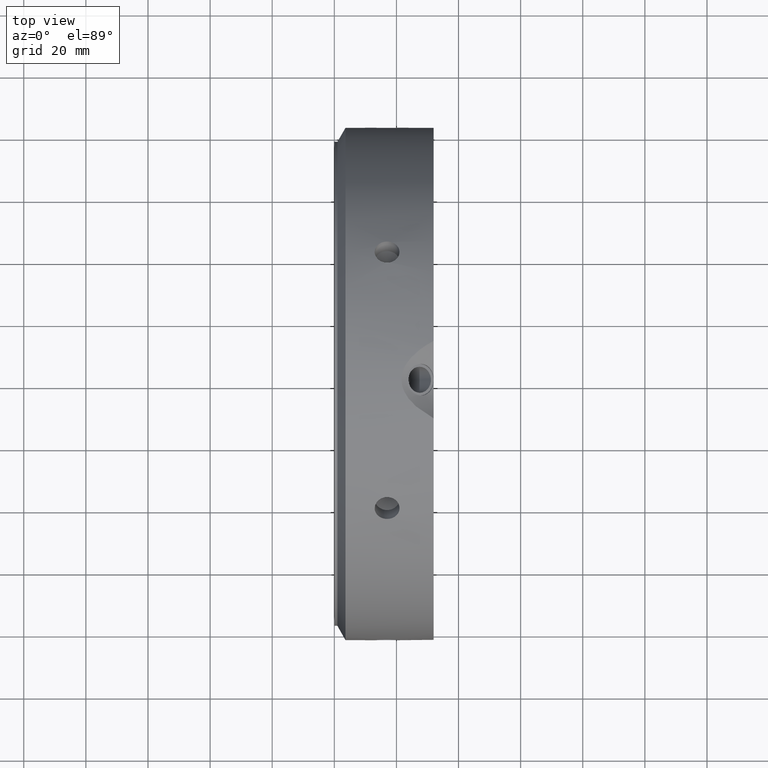
[diagram: clean part render]
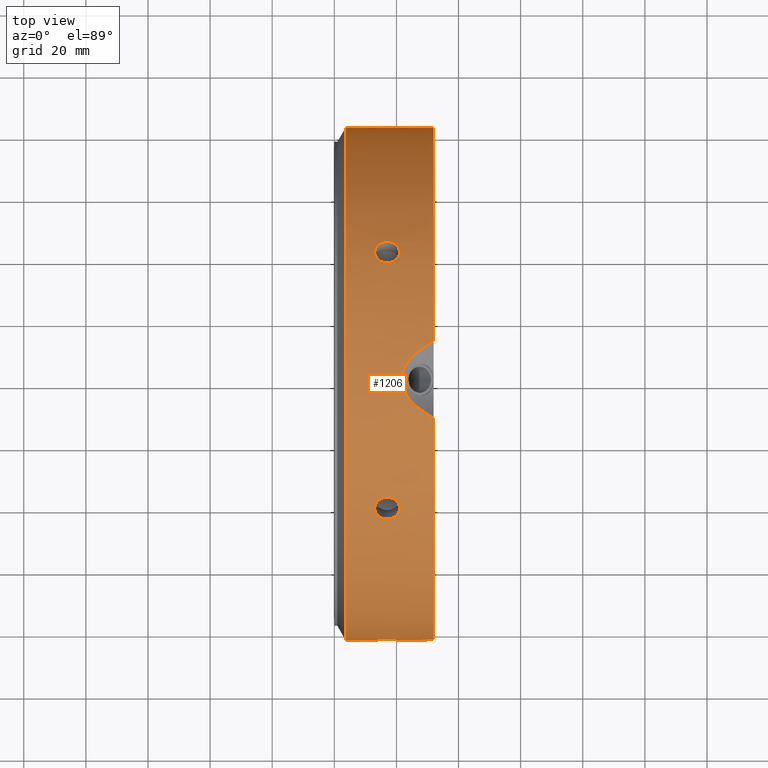
[diagram: same view with one face highlighted and labeled with its STEP entity id]
A machine part, top view. The second image highlights one B-rep face of the part: STEP entity #1206.
In plain terms, the highlighted cylindrical surface (bore or boss wall) has radius 82.5 mm, axis along (1, 0, 0).
Its self-contained STEP definition (entity closure, byte-faithful):
#90=CARTESIAN_POINT('',(12.999999999999975,41.250000000000057,71.447095812216148));
#91=VERTEX_POINT('',#90);
#92=CARTESIAN_POINT('',(20.999999999999979,41.250000000000064,71.447095812216148));
#93=VERTEX_POINT('',#92);
#94=CARTESIAN_POINT('',(12.999999999999975,41.250000000000057,71.447095812216148));
#95=CARTESIAN_POINT('',(12.999999999999975,41.685033442461872,71.195929137104329));
#96=CARTESIAN_POINT('',(13.100407551190838,42.146487817611636,70.92366634585909));
#97=CARTESIAN_POINT('',(13.508646735012434,42.990805944185865,70.415079972754441));
#98=CARTESIAN_POINT('',(13.816474009260165,43.373806231056236,70.178979592331657));
#99=CARTESIAN_POINT('',(14.526671807563524,43.976674206785511,69.802781959944241));
#100=CARTESIAN_POINT('',(14.976409945488685,44.236772683098437,69.6376312860274));
#101=CARTESIAN_POINT('',(15.961903983267661,44.581165710278498,69.41765922659674));
#102=CARTESIAN_POINT('',(16.497666555963583,44.665588238802258,69.363068179556265));
#103=CARTESIAN_POINT('',(17.50233344403637,44.665588238802258,69.363068179556265));
#104=CARTESIAN_POINT('',(18.0380960167323,44.581165710278498,69.417659226596726));
#105=CARTESIAN_POINT('',(19.023590054511274,44.236772683098437,69.6376312860274));
#106=CARTESIAN_POINT('',(19.47332819243643,43.976674206785511,69.802781959944241));
#107=CARTESIAN_POINT('',(20.183525990739788,43.373806231056236,70.178979592331672));
#108=CARTESIAN_POINT('',(20.491353264987531,42.990805944185873,70.415079972754455));
#109=CARTESIAN_POINT('',(20.89959244880912,42.146487817611636,70.923666345859104));
#110=CARTESIAN_POINT('',(20.999999999999979,41.685033442461872,71.195929137104329));
#111=CARTESIAN_POINT('',(20.999999999999979,41.250000000000057,71.447095812216148));
#112=B_SPLINE_CURVE_WITH_KNOTS('',3,(#94,#95,#96,#97,#98,#99,#100,#101,#102,#103,#104,#105,#106,#107,#108,#109,#110,#111),.UNSPECIFIED.,.F.,.U.,(4,2,2,2,2,2,2,2,4),(0.602800076556027,0.753500081623122,0.904200086690217,1.054900119901135,1.205600153112053,1.356300186322971,1.507000219533889,1.657700224600984,1.808400229668079),.UNSPECIFIED.);
#113=EDGE_CURVE('',#91,#93,#112,.T.);
#115=CARTESIAN_POINT('',(20.999999999999979,41.250000000000064,71.447095812216148));
#116=CARTESIAN_POINT('',(20.999999999999979,40.814966557538249,71.698262487327966));
#117=CARTESIAN_POINT('',(20.899592448809109,40.348452876239733,71.961762303272536));
#118=CARTESIAN_POINT('',(20.491353264987517,39.485845093825411,72.438670063209173));
#119=CARTESIAN_POINT('',(20.183525990739788,39.089876023100921,72.652307851084231));
#120=CARTESIAN_POINT('',(19.473328192436426,38.462645328745218,72.986308017000169));
#121=CARTESIAN_POINT('',(19.023590054511267,38.189571411524653,73.128984568014374));
#122=CARTESIAN_POINT('',(18.038096016732293,37.826873506344889,73.317251648723214));
#123=CARTESIAN_POINT('',(17.50233344403637,37.737385008526758,73.363068179556279));
#124=CARTESIAN_POINT('',(16.999999999999979,37.737385008526758,73.363068179556279));
#125=CARTESIAN_POINT('',(16.497666555963583,37.737385008526758,73.363068179556279));
#126=CARTESIAN_POINT('',(15.961903983267653,37.826873506344889,73.3172516487232));
#127=CARTESIAN_POINT('',(14.976409945488678,38.189571411524653,73.128984568014374));
#128=CARTESIAN_POINT('',(14.526671807563527,38.462645328745218,72.986308017000169));
#129=CARTESIAN_POINT('',(13.816474009260165,39.089876023100921,72.652307851084231));
#130=CARTESIAN_POINT('',(13.508646735012436,39.485845093825404,72.438670063209173));
#131=CARTESIAN_POINT('',(13.100407551190841,40.348452876239726,71.961762303272522));
#132=CARTESIAN_POINT('',(12.999999999999979,40.814966557538234,71.698262487327966));
#133=CARTESIAN_POINT('',(12.999999999999979,41.250000000000057,71.447095812216148));
#134=B_SPLINE_CURVE_WITH_KNOTS('',3,(#115,#116,#117,#118,#119,#120,#121,#122,#123,#124,#125,#126,#127,#128,#129,#130,#131,#132,#133),.UNSPECIFIED.,.F.,.U.,(4,2,2,2,3,2,2,2,4),(1.808400229668079,1.959100234735174,2.109800239802269,2.260500273013188,2.411200306224106,2.561900339435024,2.712600372645942,2.863300377713037,3.014000382780132),.UNSPECIFIED.);
#135=EDGE_CURVE('',#93,#91,#134,.T.);
#202=CARTESIAN_POINT('',(12.999999999999975,82.5,-5.495604E-014));
#203=VERTEX_POINT('',#202);
#204=CARTESIAN_POINT('',(20.999999999999979,82.5,-5.329071E-014));
#205=VERTEX_POINT('',#204);
#206=CARTESIAN_POINT('',(12.999999999999979,82.5,-5.037637E-014));
#207=CARTESIAN_POINT('',(12.999999999999979,82.5,-0.502333350223701));
#208=CARTESIAN_POINT('',(13.100407551190841,82.494940693851248,-1.038095957413485));
#209=CARTESIAN_POINT('',(13.508646735012436,82.476651038011141,-2.023590090454768));
#210=CARTESIAN_POINT('',(13.816474009260167,82.46368225415705,-2.47332825875262));
#211=CARTESIAN_POINT('',(14.526671807563529,82.439319535530586,-3.183526057055981));
#212=CARTESIAN_POINT('',(14.976409945488685,82.426344094622962,-3.491353281987027));
#213=CARTESIAN_POINT('',(15.961903983267661,82.408039216623251,-3.899592422126512));
#214=CARTESIAN_POINT('',(16.497666555963583,82.402973247328902,-4.000000000000052));
#215=CARTESIAN_POINT('',(17.502333444036374,82.402973247328902,-4.000000000000051));
#216=CARTESIAN_POINT('',(18.0380960167323,82.408039216623251,-3.89959242212651));
#217=CARTESIAN_POINT('',(19.023590054511274,82.426344094622962,-3.491353281987024));
#218=CARTESIAN_POINT('',(19.47332819243643,82.439319535530586,-3.183526057055981));
#219=CARTESIAN_POINT('',(20.183525990739788,82.46368225415705,-2.473328258752619));
#220=CARTESIAN_POINT('',(20.491353264987524,82.476651038011141,-2.023590090454766));
#221=CARTESIAN_POINT('',(20.899592448809116,82.494940693851248,-1.038095957413483));
#222=CARTESIAN_POINT('',(20.999999999999979,82.5,-0.502333350223701));
#223=CARTESIAN_POINT('',(20.999999999999979,82.5,-5.148659E-014));
#224=B_SPLINE_CURVE_WITH_KNOTS('',3,(#206,#207,#208,#209,#210,#211,#212,#213,#214,#215,#216,#217,#218,#219,#220,#221,#222,#223),.UNSPECIFIED.,.F.,.U.,(4,2,2,2,2,2,2,2,4),(0.602800076556026,0.753500081623121,0.904200086690216,1.054900119901135,1.205600153112053,1.356300186322971,1.507000219533889,1.657700224600984,1.808400229668079),.UNSPECIFIED.);
#225=EDGE_CURVE('',#203,#205,#224,.T.);
#227=CARTESIAN_POINT('',(20.999999999999979,82.5,-5.148659E-014));
#228=CARTESIAN_POINT('',(20.999999999999979,82.5,0.502333350223598));
#229=CARTESIAN_POINT('',(20.899592448809116,82.494940693851248,1.038095957413382));
#230=CARTESIAN_POINT('',(20.491353264987524,82.476651038011141,2.023590090454665));
#231=CARTESIAN_POINT('',(20.183525990739788,82.463682254157021,2.473328258752518));
#232=CARTESIAN_POINT('',(19.473328192436426,82.439319535530586,3.18352605705588));
#233=CARTESIAN_POINT('',(19.023590054511271,82.426344094622962,3.491353281986924));
#234=CARTESIAN_POINT('',(18.038096016732293,82.408039216623251,3.89959242212641));
#235=CARTESIAN_POINT('',(17.502333444036367,82.402973247328902,3.99999999999995));
#236=CARTESIAN_POINT('',(16.999999999999979,82.402973247328902,3.99999999999995));
#237=CARTESIAN_POINT('',(16.497666555963583,82.402973247328902,3.99999999999995));
#238=CARTESIAN_POINT('',(15.961903983267655,82.408039216623251,3.899592422126409));
#239=CARTESIAN_POINT('',(14.976409945488683,82.426344094622962,3.491353281986923));
#240=CARTESIAN_POINT('',(14.526671807563527,82.439319535530586,3.18352605705588));
#241=CARTESIAN_POINT('',(13.816474009260165,82.463682254157021,2.473328258752519));
#242=CARTESIAN_POINT('',(13.508646735012437,82.476651038011141,2.023590090454666));
#243=CARTESIAN_POINT('',(13.100407551190845,82.494940693851248,1.038095957413384));
#244=CARTESIAN_POINT('',(12.999999999999979,82.5,0.502333350223599));
#245=CARTESIAN_POINT('',(12.999999999999979,82.5,-5.079270E-014));
#246=B_SPLINE_CURVE_WITH_KNOTS('',3,(#227,#228,#229,#230,#231,#232,#233,#234,#235,#236,#237,#238,#239,#240,#241,#242,#243,#244,#245),.UNSPECIFIED.,.F.,.U.,(4,2,2,2,3,2,2,2,4),(1.808400229668079,1.959100234735174,2.109800239802269,2.260500273013188,2.411200306224106,2.561900339435024,2.712600372645942,2.863300377713037,3.014000382780132),.UNSPECIFIED.);
#247=EDGE_CURVE('',#205,#203,#246,.T.);
#314=CARTESIAN_POINT('',(12.999999999999975,41.249999999999986,-71.447095812216205));
#315=VERTEX_POINT('',#314);
#316=CARTESIAN_POINT('',(20.999999999999979,41.249999999999986,-71.447095812216205));
#317=VERTEX_POINT('',#316);
#318=CARTESIAN_POINT('',(12.999999999999979,41.249999999999972,-71.44709581221619));
#319=CARTESIAN_POINT('',(12.999999999999979,40.814966557538142,-71.698262487328023));
#320=CARTESIAN_POINT('',(13.100407551190843,40.348452876239648,-71.961762303272565));
#321=CARTESIAN_POINT('',(13.508646735012439,39.485845093825318,-72.438670063209216));
#322=CARTESIAN_POINT('',(13.816474009260167,39.089876023100842,-72.652307851084288));
#323=CARTESIAN_POINT('',(14.526671807563527,38.46264532874514,-72.986308017000212));
#324=CARTESIAN_POINT('',(14.97640994548868,38.189571411524568,-73.128984568014431));
#325=CARTESIAN_POINT('',(15.961903983267655,37.82687350634481,-73.317251648723257));
#326=CARTESIAN_POINT('',(16.497666555963583,37.737385008526672,-73.363068179556308));
#327=CARTESIAN_POINT('',(17.50233344403637,37.737385008526672,-73.363068179556308));
#328=CARTESIAN_POINT('',(18.038096016732304,37.82687350634481,-73.317251648723257));
#329=CARTESIAN_POINT('',(19.023590054511281,38.189571411524582,-73.128984568014431));
#330=CARTESIAN_POINT('',(19.473328192436426,38.46264532874514,-72.986308017000212));
#331=CARTESIAN_POINT('',(20.183525990739788,39.089876023100842,-72.652307851084288));
#332=CARTESIAN_POINT('',(20.491353264987524,39.485845093825326,-72.438670063209202));
#333=CARTESIAN_POINT('',(20.899592448809116,40.348452876239648,-71.961762303272565));
#334=CARTESIAN_POINT('',(20.999999999999979,40.814966557538156,-71.698262487328023));
#335=CARTESIAN_POINT('',(20.999999999999979,41.249999999999986,-71.447095812216205));
#336=B_SPLINE_CURVE_WITH_KNOTS('',3,(#318,#319,#320,#321,#322,#323,#324,#325,#326,#327,#328,#329,#330,#331,#332,#333,#334,#335),.UNSPECIFIED.,.F.,.U.,(4,2,2,2,2,2,2,2,4),(0.602800076556026,0.753500081623121,0.904200086690216,1.054900119901134,1.205600153112052,1.35630018632297,1.507000219533889,1.657700224600984,1.808400229668079),.UNSPECIFIED.);
#337=EDGE_CURVE('',#315,#317,#336,.T.);
#339=CARTESIAN_POINT('',(20.999999999999979,41.249999999999986,-71.44709581221619));
#340=CARTESIAN_POINT('',(20.999999999999979,41.685033442461815,-71.195929137104358));
#341=CARTESIAN_POINT('',(20.899592448809116,42.146487817611572,-70.923666345859147));
#342=CARTESIAN_POINT('',(20.491353264987524,42.990805944185794,-70.415079972754512));
#343=CARTESIAN_POINT('',(20.183525990739788,43.37380623105615,-70.1789795923317));
#344=CARTESIAN_POINT('',(19.473328192436426,43.976674206785418,-69.802781959944284));
#345=CARTESIAN_POINT('',(19.023590054511274,44.236772683098366,-69.637631286027457));
#346=CARTESIAN_POINT('',(18.0380960167323,44.581165710278427,-69.417659226596797));
#347=CARTESIAN_POINT('',(17.50233344403637,44.665588238802187,-69.363068179556308));
#348=CARTESIAN_POINT('',(16.999999999999979,44.665588238802187,-69.363068179556308));
#349=CARTESIAN_POINT('',(16.497666555963583,44.665588238802187,-69.363068179556308));
#350=CARTESIAN_POINT('',(15.961903983267655,44.581165710278427,-69.417659226596797));
#351=CARTESIAN_POINT('',(14.976409945488683,44.236772683098366,-69.637631286027457));
#352=CARTESIAN_POINT('',(14.526671807563527,43.976674206785418,-69.802781959944284));
#353=CARTESIAN_POINT('',(13.816474009260167,43.37380623105615,-70.1789795923317));
#354=CARTESIAN_POINT('',(13.50864673501243,42.990805944185794,-70.415079972754512));
#355=CARTESIAN_POINT('',(13.100407551190838,42.146487817611572,-70.923666345859147));
#356=CARTESIAN_POINT('',(12.999999999999975,41.685033442461815,-71.195929137104358));
#357=CARTESIAN_POINT('',(12.999999999999975,41.249999999999986,-71.44709581221619));
#358=B_SPLINE_CURVE_WITH_KNOTS('',3,(#339,#340,#341,#342,#343,#344,#345,#346,#347,#348,#349,#350,#351,#352,#353,#354,#355,#356,#357),.UNSPECIFIED.,.F.,.U.,(4,2,2,2,3,2,2,2,4),(1.808400229668079,1.959100234735173,2.109800239802268,2.260500273013186,2.411200306224104,2.561900339435022,2.71260037264594,2.863300377713035,3.01400038278013),.UNSPECIFIED.);
#359=EDGE_CURVE('',#317,#315,#358,.T.);
#426=CARTESIAN_POINT('',(12.999999999999975,-41.250000000000028,-71.447095812216176));
#427=VERTEX_POINT('',#426);
#428=CARTESIAN_POINT('',(20.999999999999979,-41.250000000000028,-71.447095812216176));
#429=VERTEX_POINT('',#428);
#430=CARTESIAN_POINT('',(12.999999999999975,-41.250000000000014,-71.447095812216176));
#431=CARTESIAN_POINT('',(12.999999999999975,-41.685033442461844,-71.195929137104343));
#432=CARTESIAN_POINT('',(13.100407551190841,-42.1464878176116,-70.923666345859118));
#433=CARTESIAN_POINT('',(13.508646735012436,-42.99080594418583,-70.415079972754469));
#434=CARTESIAN_POINT('',(13.816474009260165,-43.3738062310562,-70.178979592331686));
#435=CARTESIAN_POINT('',(14.526671807563527,-43.976674206785461,-69.802781959944269));
#436=CARTESIAN_POINT('',(14.976409945488687,-44.236772683098387,-69.637631286027428));
#437=CARTESIAN_POINT('',(15.961903983267657,-44.581165710278448,-69.417659226596768));
#438=CARTESIAN_POINT('',(16.497666555963583,-44.665588238802229,-69.363068179556279));
#439=CARTESIAN_POINT('',(17.50233344403637,-44.665588238802229,-69.363068179556279));
#440=CARTESIAN_POINT('',(18.0380960167323,-44.581165710278448,-69.417659226596768));
#441=CARTESIAN_POINT('',(19.023590054511271,-44.236772683098387,-69.637631286027428));
#442=CARTESIAN_POINT('',(19.473328192436426,-43.976674206785475,-69.802781959944269));
#443=CARTESIAN_POINT('',(20.183525990739788,-43.3738062310562,-70.178979592331686));
#444=CARTESIAN_POINT('',(20.491353264987513,-42.99080594418583,-70.415079972754469));
#445=CARTESIAN_POINT('',(20.899592448809109,-42.1464878176116,-70.923666345859118));
#446=CARTESIAN_POINT('',(20.999999999999979,-41.685033442461837,-71.195929137104358));
#447=CARTESIAN_POINT('',(20.999999999999979,-41.250000000000007,-71.447095812216176));
#448=B_SPLINE_CURVE_WITH_KNOTS('',3,(#430,#431,#432,#433,#434,#435,#436,#437,#438,#439,#440,#441,#442,#443,#444,#445,#446,#447),.UNSPECIFIED.,.F.,.U.,(4,2,2,2,2,2,2,2,4),(0.602800076556026,0.753500081623122,0.904200086690217,1.054900119901135,1.205600153112053,1.356300186322971,1.507000219533889,1.657700224600985,1.80840022966808),.UNSPECIFIED.);
#449=EDGE_CURVE('',#427,#429,#448,.T.);
#451=CARTESIAN_POINT('',(20.999999999999979,-41.250000000000007,-71.447095812216176));
#452=CARTESIAN_POINT('',(20.999999999999979,-40.814966557538177,-71.698262487328009));
#453=CARTESIAN_POINT('',(20.899592448809109,-40.348452876239691,-71.96176230327255));
#454=CARTESIAN_POINT('',(20.491353264987524,-39.485845093825375,-72.438670063209187));
#455=CARTESIAN_POINT('',(20.183525990739788,-39.089876023100885,-72.652307851084259));
#456=CARTESIAN_POINT('',(19.473328192436426,-38.462645328745182,-72.986308017000184));
#457=CARTESIAN_POINT('',(19.023590054511274,-38.189571411524611,-73.128984568014417));
#458=CARTESIAN_POINT('',(18.038096016732297,-37.826873506344839,-73.317251648723243));
#459=CARTESIAN_POINT('',(17.502333444036374,-37.737385008526715,-73.363068179556294));
#460=CARTESIAN_POINT('',(16.999999999999979,-37.737385008526715,-73.363068179556294));
#461=CARTESIAN_POINT('',(16.497666555963583,-37.737385008526715,-73.363068179556294));
#462=CARTESIAN_POINT('',(15.961903983267652,-37.826873506344846,-73.317251648723229));
#463=CARTESIAN_POINT('',(14.976409945488678,-38.189571411524611,-73.128984568014403));
#464=CARTESIAN_POINT('',(14.526671807563527,-38.462645328745175,-72.986308017000198));
#465=CARTESIAN_POINT('',(13.816474009260165,-39.089876023100878,-72.652307851084274));
#466=CARTESIAN_POINT('',(13.508646735012437,-39.485845093825361,-72.438670063209187));
#467=CARTESIAN_POINT('',(13.100407551190845,-40.348452876239676,-71.96176230327255));
#468=CARTESIAN_POINT('',(12.999999999999979,-40.814966557538185,-71.698262487328009));
#469=CARTESIAN_POINT('',(12.999999999999979,-41.250000000000014,-71.447095812216176));
#470=B_SPLINE_CURVE_WITH_KNOTS('',3,(#451,#452,#453,#454,#455,#456,#457,#458,#459,#460,#461,#462,#463,#464,#465,#466,#467,#468,#469),.UNSPECIFIED.,.F.,.U.,(4,2,2,2,3,2,2,2,4),(1.80840022966808,1.959100234735175,2.10980023980227,2.260500273013188,2.411200306224106,2.561900339435024,2.712600372645942,2.863300377713038,3.014000382780132),.UNSPECIFIED.);
#471=EDGE_CURVE('',#429,#427,#470,.T.);
#538=CARTESIAN_POINT('',(12.999999999999975,-82.5,2.289835E-014));
#539=VERTEX_POINT('',#538);
#540=CARTESIAN_POINT('',(20.999999999999979,-82.5,1.776357E-014));
#541=VERTEX_POINT('',#540);
#542=CARTESIAN_POINT('',(12.999999999999979,-82.5,1.804112E-014));
#543=CARTESIAN_POINT('',(12.999999999999979,-82.5,0.502333350223668));
#544=CARTESIAN_POINT('',(13.100407551190841,-82.494940693851248,1.038095957413453));
#545=CARTESIAN_POINT('',(13.508646735012434,-82.476651038011141,2.023590090454736));
#546=CARTESIAN_POINT('',(13.816474009260167,-82.46368225415705,2.473328258752586));
#547=CARTESIAN_POINT('',(14.526671807563527,-82.439319535530586,3.183526057055948));
#548=CARTESIAN_POINT('',(14.976409945488683,-82.426344094622962,3.491353281986992));
#549=CARTESIAN_POINT('',(15.961903983267655,-82.408039216623251,3.899592422126478));
#550=CARTESIAN_POINT('',(16.497666555963583,-82.402973247328902,4.000000000000019));
#551=CARTESIAN_POINT('',(17.50233344403637,-82.402973247328902,4.000000000000019));
#552=CARTESIAN_POINT('',(18.0380960167323,-82.408039216623251,3.899592422126478));
#553=CARTESIAN_POINT('',(19.023590054511274,-82.426344094622962,3.491353281986992));
#554=CARTESIAN_POINT('',(19.473328192436426,-82.439319535530586,3.183526057055948));
#555=CARTESIAN_POINT('',(20.183525990739788,-82.46368225415705,2.473328258752587));
#556=CARTESIAN_POINT('',(20.491353264987517,-82.476651038011141,2.023590090454737));
#557=CARTESIAN_POINT('',(20.899592448809109,-82.494940693851248,1.038095957413455));
#558=CARTESIAN_POINT('',(20.999999999999979,-82.5,0.50233335022367));
#559=CARTESIAN_POINT('',(20.999999999999979,-82.5,1.998401E-014));
#560=B_SPLINE_CURVE_WITH_KNOTS('',3,(#542,#543,#544,#545,#546,#547,#548,#549,#550,#551,#552,#553,#554,#555,#556,#557,#558,#559),.UNSPECIFIED.,.F.,.U.,(4,2,2,2,2,2,2,2,4),(0.602800076556026,0.753500081623121,0.904200086690216,1.054900119901134,1.205600153112052,1.35630018632297,1.507000219533889,1.657700224600983,1.808400229668078),.UNSPECIFIED.);
#561=EDGE_CURVE('',#539,#541,#560,.T.);
#563=CARTESIAN_POINT('',(20.999999999999979,-82.5,1.942890E-014));
#564=CARTESIAN_POINT('',(20.999999999999979,-82.5,-0.502333350223631));
#565=CARTESIAN_POINT('',(20.899592448809116,-82.494940693851248,-1.038095957413413));
#566=CARTESIAN_POINT('',(20.491353264987524,-82.476651038011141,-2.023590090454697));
#567=CARTESIAN_POINT('',(20.183525990739788,-82.46368225415705,-2.473328258752551));
#568=CARTESIAN_POINT('',(19.473328192436426,-82.439319535530586,-3.183526057055912));
#569=CARTESIAN_POINT('',(19.023590054511274,-82.426344094622962,-3.491353281986955));
#570=CARTESIAN_POINT('',(18.0380960167323,-82.408039216623251,-3.899592422126441));
#571=CARTESIAN_POINT('',(17.50233344403637,-82.402973247328902,-3.999999999999982));
#572=CARTESIAN_POINT('',(16.999999999999979,-82.402973247328902,-3.999999999999982));
#573=CARTESIAN_POINT('',(16.497666555963583,-82.402973247328902,-3.999999999999982));
#574=CARTESIAN_POINT('',(15.961903983267655,-82.408039216623251,-3.899592422126442));
#575=CARTESIAN_POINT('',(14.976409945488683,-82.426344094622962,-3.491353281986956));
#576=CARTESIAN_POINT('',(14.526671807563527,-82.439319535530586,-3.183526057055913));
#577=CARTESIAN_POINT('',(13.816474009260165,-82.46368225415705,-2.473328258752552));
#578=CARTESIAN_POINT('',(13.508646735012437,-82.476651038011141,-2.023590090454699));
#579=CARTESIAN_POINT('',(13.100407551190843,-82.494940693851248,-1.038095957413416));
#580=CARTESIAN_POINT('',(12.999999999999979,-82.5,-0.502333350223632));
#581=CARTESIAN_POINT('',(12.999999999999979,-82.5,1.845746E-014));
#582=B_SPLINE_CURVE_WITH_KNOTS('',3,(#563,#564,#565,#566,#567,#568,#569,#570,#571,#572,#573,#574,#575,#576,#577,#578,#579,#580,#581),.UNSPECIFIED.,.F.,.U.,(4,2,2,2,3,2,2,2,4),(1.808400229668078,1.959100234735173,2.109800239802269,2.260500273013187,2.411200306224105,2.561900339435023,2.712600372645941,2.863300377713036,3.014000382780131),.UNSPECIFIED.);
#583=EDGE_CURVE('',#541,#539,#582,.T.);
#687=CARTESIAN_POINT('',(12.999999999999975,-41.249999999999986,71.44709581221619));
#688=VERTEX_POINT('',#687);
#689=CARTESIAN_POINT('',(20.999999999999979,-41.249999999999993,71.44709581221619));
#690=VERTEX_POINT('',#689);
#691=CARTESIAN_POINT('',(12.999999999999975,-41.249999999999993,71.44709581221619));
#692=CARTESIAN_POINT('',(12.999999999999975,-40.814966557538163,71.698262487328023));
#693=CARTESIAN_POINT('',(13.100407551190838,-40.348452876239655,71.961762303272565));
#694=CARTESIAN_POINT('',(13.508646735012436,-39.485845093825333,72.438670063209216));
#695=CARTESIAN_POINT('',(13.816474009260165,-39.08987602310085,72.652307851084274));
#696=CARTESIAN_POINT('',(14.526671807563527,-38.462645328745147,72.986308017000212));
#697=CARTESIAN_POINT('',(14.97640994548868,-38.189571411524582,73.128984568014431));
#698=CARTESIAN_POINT('',(15.961903983267653,-37.826873506344818,73.317251648723257));
#699=CARTESIAN_POINT('',(16.497666555963583,-37.737385008526687,73.363068179556308));
#700=CARTESIAN_POINT('',(17.502333444036374,-37.737385008526687,73.363068179556308));
#701=CARTESIAN_POINT('',(18.0380960167323,-37.826873506344818,73.317251648723257));
#702=CARTESIAN_POINT('',(19.023590054511274,-38.189571411524582,73.128984568014431));
#703=CARTESIAN_POINT('',(19.473328192436426,-38.462645328745147,72.986308017000212));
#704=CARTESIAN_POINT('',(20.183525990739788,-39.089876023100857,72.652307851084274));
#705=CARTESIAN_POINT('',(20.491353264987524,-39.48584509382534,72.438670063209202));
#706=CARTESIAN_POINT('',(20.899592448809116,-40.348452876239662,71.961762303272565));
#707=CARTESIAN_POINT('',(20.999999999999979,-40.81496655753817,71.698262487328009));
#708=CARTESIAN_POINT('',(20.999999999999979,-41.25,71.447095812216176));
#709=B_SPLINE_CURVE_WITH_KNOTS('',3,(#691,#692,#693,#694,#695,#696,#697,#698,#699,#700,#701,#702,#703,#704,#705,#706,#707,#708),.UNSPECIFIED.,.F.,.U.,(4,2,2,2,2,2,2,2,4),(0.602800076556026,0.753500081623121,0.904200086690217,1.054900119901135,1.205600153112053,1.356300186322971,1.507000219533889,1.657700224600985,1.80840022966808),.UNSPECIFIED.);
#710=EDGE_CURVE('',#688,#690,#709,.T.);
#712=CARTESIAN_POINT('',(20.999999999999975,-41.249999999999993,71.44709581221619));
#713=CARTESIAN_POINT('',(20.999999999999975,-41.685033442461823,71.195929137104358));
#714=CARTESIAN_POINT('',(20.899592448809116,-42.146487817611593,70.923666345859118));
#715=CARTESIAN_POINT('',(20.491353264987524,-42.990805944185801,70.415079972754484));
#716=CARTESIAN_POINT('',(20.183525990739788,-43.373806231056165,70.1789795923317));
#717=CARTESIAN_POINT('',(19.473328192436426,-43.976674206785439,69.802781959944284));
#718=CARTESIAN_POINT('',(19.023590054511274,-44.23677268309838,69.637631286027442));
#719=CARTESIAN_POINT('',(18.038096016732297,-44.581165710278441,69.417659226596783));
#720=CARTESIAN_POINT('',(17.50233344403637,-44.665588238802201,69.363068179556308));
#721=CARTESIAN_POINT('',(16.999999999999979,-44.665588238802201,69.363068179556308));
#722=CARTESIAN_POINT('',(16.497666555963583,-44.665588238802201,69.363068179556308));
#723=CARTESIAN_POINT('',(15.961903983267657,-44.581165710278441,69.417659226596783));
#724=CARTESIAN_POINT('',(14.976409945488683,-44.23677268309838,69.637631286027442));
#725=CARTESIAN_POINT('',(14.526671807563527,-43.976674206785439,69.802781959944284));
#726=CARTESIAN_POINT('',(13.816474009260165,-43.373806231056165,70.1789795923317));
#727=CARTESIAN_POINT('',(13.508646735012436,-42.990805944185801,70.415079972754484));
#728=CARTESIAN_POINT('',(13.100407551190843,-42.146487817611593,70.923666345859118));
#729=CARTESIAN_POINT('',(12.999999999999975,-41.68503344246183,71.195929137104358));
#730=CARTESIAN_POINT('',(12.999999999999975,-41.25,71.447095812216176));
#731=B_SPLINE_CURVE_WITH_KNOTS('',3,(#712,#713,#714,#715,#716,#717,#718,#719,#720,#721,#722,#723,#724,#725,#726,#727,#728,#729,#730),.UNSPECIFIED.,.F.,.U.,(4,2,2,2,3,2,2,2,4),(1.80840022966808,1.959100234735175,2.10980023980227,2.260500273013188,2.411200306224106,2.561900339435024,2.712600372645942,2.863300377713037,3.014000382780132),.UNSPECIFIED.);
#732=EDGE_CURVE('',#690,#688,#731,.T.);
#747=CARTESIAN_POINT('',(31.999999999999986,76.865846385536514,-29.964840387278922));
#748=VERTEX_POINT('',#747);
#796=CARTESIAN_POINT('',(31.999999999999989,64.383236188497662,-51.585355459627536));
#797=VERTEX_POINT('',#796);
#805=CARTESIAN_POINT('',(31.999999999999964,76.865846385536528,-29.964840387278887));
#806=CARTESIAN_POINT('',(30.743141802382233,76.617922308281322,-30.600815543204153));
#807=CARTESIAN_POINT('',(29.540854089706396,76.342693375729169,-31.283986091858161));
#808=CARTESIAN_POINT('',(26.70721767555694,75.559973393956099,-33.142316669831821));
#809=CARTESIAN_POINT('',(24.978789514211183,74.948442935778331,-34.525924308852069));
#810=CARTESIAN_POINT('',(23.063079524995274,73.800589763880083,-36.884788355953603));
#811=CARTESIAN_POINT('',(22.536002102678069,73.379273097250859,-37.718553766833857));
#812=CARTESIAN_POINT('',(21.808098899204921,72.464243718015638,-39.447945460195236));
#813=CARTESIAN_POINT('',(21.607695154586786,71.970369275392656,-40.343663775525833));
#814=CARTESIAN_POINT('',(21.607695154586786,70.923822349039668,-42.156336224474259));
#815=CARTESIAN_POINT('',(21.808098899204921,70.395044754639855,-43.031903195730919));
#816=CARTESIAN_POINT('',(22.536002102678069,69.354862304712725,-44.689037730038407));
#817=CARTESIAN_POINT('',(23.063079524995285,68.843458611408266,-45.470791371817228));
#818=CARTESIAN_POINT('',(24.978789514211194,67.374549008493688,-47.644293402046415));
#819=CARTESIAN_POINT('',(26.707217675556922,66.48207487332084,-48.865698133526436));
#820=CARTESIAN_POINT('',(29.540854089706393,65.26407337505276,-50.472718810778439));
#821=CARTESIAN_POINT('',(30.743141802382226,64.81004479107709,-51.052659332552075));
#822=CARTESIAN_POINT('',(31.999999999999979,64.383236188497648,-51.58535545962755));
#823=B_SPLINE_CURVE_WITH_KNOTS('',3,(#805,#806,#807,#808,#809,#810,#811,#812,#813,#814,#815,#816,#817,#818,#819,#820,#821,#822),.UNSPECIFIED.,.F.,.U.,(4,2,2,2,2,2,2,2,4),(2.412922658358301,2.828353721178481,3.456281876990279,3.770245954896177,4.084210032802076,4.398174110707974,4.712138188613873,5.340066344425669,5.755497407245853),.UNSPECIFIED.);
#824=EDGE_CURVE('',#748,#797,#823,.T.);
#933=CARTESIAN_POINT('',(31.999999999999986,-64.38323618849769,-51.585355459627493));
#934=VERTEX_POINT('',#933);
#982=CARTESIAN_POINT('',(31.999999999999986,-76.865846385536571,-29.96484038727878));
#983=VERTEX_POINT('',#982);
#991=CARTESIAN_POINT('',(31.999999999999979,-64.383236188497676,-51.5853554596275));
#992=CARTESIAN_POINT('',(30.67783899994863,-64.832220560709729,-51.024981946185392));
#993=CARTESIAN_POINT('',(29.416067722399294,-65.311270973937496,-50.412430377635701));
#994=CARTESIAN_POINT('',(26.571676113315156,-66.550680952920644,-48.771994217597992));
#995=CARTESIAN_POINT('',(24.885309708729373,-67.433321015573682,-47.560346669593585));
#996=CARTESIAN_POINT('',(23.020060993046513,-68.883370618875503,-45.41011581626946));
#997=CARTESIAN_POINT('',(22.50766696522782,-69.387851111560309,-44.637505294661928));
#998=CARTESIAN_POINT('',(21.801246104270202,-70.412720088933341,-43.002669807945601));
#999=CARTESIAN_POINT('',(21.607695154586754,-70.93311398267646,-42.140242642930033));
#1000=CARTESIAN_POINT('',(21.60769515458675,-71.961077641755949,-40.359757357069924));
#1001=CARTESIAN_POINT('',(21.801246104270199,-72.447764528701668,-39.47786944260632));
#1002=CARTESIAN_POINT('',(22.507666965227806,-73.351139102519781,-37.77288912929253));
#1003=CARTESIAN_POINT('',(23.020060993046513,-73.767999195120638,-36.949690946110039));
#1004=CARTESIAN_POINT('',(24.885309708729373,-74.905128936449501,-34.618795726241054));
#1005=CARTESIAN_POINT('',(26.571676113315156,-75.513126462127943,-33.248583235583425));
#1006=CARTESIAN_POINT('',(29.416067722399305,-76.314080860515617,-31.355004628061216));
#1007=CARTESIAN_POINT('',(30.677838999948644,-76.605040873393762,-30.633859016237679));
#1008=CARTESIAN_POINT('',(31.999999999999996,-76.865846385536557,-29.964840387278787));
#1009=B_SPLINE_CURVE_WITH_KNOTS('',3,(#991,#992,#993,#994,#995,#996,#997,#998,#999,#1000,#1001,#1002,#1003,#1004,#1005,#1006,#1007,#1008),.UNSPECIFIED.,.F.,.U.,(4,2,2,2,2,2,2,2,4),(2.341558868586687,2.777679451051258,3.394457646498955,3.702846744222804,4.011235841946653,4.319624939670501,4.628014037394349,5.244792232842046,5.680912815306621),.UNSPECIFIED.);
#1010=EDGE_CURVE('',#934,#983,#1009,.T.);
#1112=CARTESIAN_POINT('',(17.799038105676633,0.0,0.0));
#1113=DIRECTION('',(1.0,0.0,0.0));
#1114=DIRECTION('',(0.0,1.0,0.0));
#1115=AXIS2_PLACEMENT_3D('',#1112,#1113,#1114);
#1116=CYLINDRICAL_SURFACE('',#1115,82.5);
#1117=CARTESIAN_POINT('',(3.598076211353284,82.5,0.0));
#1118=VERTEX_POINT('',#1117);
#1119=CARTESIAN_POINT('',(3.598076211353284,0.0,0.0));
#1120=DIRECTION('',(1.0,0.0,0.0));
#1121=DIRECTION('',(0.0,1.0,0.0));
#1122=AXIS2_PLACEMENT_3D('',#1119,#1120,#1121);
#1123=CIRCLE('',#1122,82.5);
#1124=EDGE_CURVE('',#1118,#1118,#1123,.T.);
#1125=ORIENTED_EDGE('',*,*,#1124,.T.);
#1126=EDGE_LOOP('',(#1125));
#1127=FACE_OUTER_BOUND('',#1126,.T.);
#1128=ORIENTED_EDGE('',*,*,#113,.T.);
#1129=ORIENTED_EDGE('',*,*,#135,.T.);
#1130=EDGE_LOOP('',(#1128,#1129));
#1131=FACE_BOUND('',#1130,.T.);
#1132=ORIENTED_EDGE('',*,*,#225,.T.);
#1133=ORIENTED_EDGE('',*,*,#247,.T.);
#1134=EDGE_LOOP('',(#1132,#1133));
#1135=FACE_BOUND('',#1134,.T.);
#1136=ORIENTED_EDGE('',*,*,#337,.T.);
#1137=ORIENTED_EDGE('',*,*,#359,.T.);
#1138=EDGE_LOOP('',(#1136,#1137));
#1139=FACE_BOUND('',#1138,.T.);
#1140=ORIENTED_EDGE('',*,*,#449,.T.);
#1141=ORIENTED_EDGE('',*,*,#471,.T.);
#1142=EDGE_LOOP('',(#1140,#1141));
#1143=FACE_BOUND('',#1142,.T.);
#1144=ORIENTED_EDGE('',*,*,#561,.T.);
#1145=ORIENTED_EDGE('',*,*,#583,.T.);
#1146=EDGE_LOOP('',(#1144,#1145));
#1147=FACE_BOUND('',#1146,.T.);
#1148=ORIENTED_EDGE('',*,*,#710,.T.);
#1149=ORIENTED_EDGE('',*,*,#732,.T.);
#1150=EDGE_LOOP('',(#1148,#1149));
#1151=FACE_BOUND('',#1150,.T.);
#1152=ORIENTED_EDGE('',*,*,#824,.T.);
#1153=CARTESIAN_POINT('',(31.999999999999986,0.0,0.0));
#1154=DIRECTION('',(1.0,0.0,0.0));
#1155=DIRECTION('',(0.0,1.0,0.0));
#1156=AXIS2_PLACEMENT_3D('',#1153,#1154,#1155);
#1157=CIRCLE('',#1156,82.5);
#1158=EDGE_CURVE('',#934,#797,#1157,.T.);
#1159=ORIENTED_EDGE('',*,*,#1158,.F.);
#1160=ORIENTED_EDGE('',*,*,#1010,.T.);
#1161=CARTESIAN_POINT('',(31.999999999999986,-12.482610197038895,81.550195846906348));
#1162=VERTEX_POINT('',#1161);
#1163=CARTESIAN_POINT('',(31.999999999999986,0.0,0.0));
#1164=DIRECTION('',(1.0,0.0,0.0));
#1165=DIRECTION('',(0.0,1.0,0.0));
#1166=AXIS2_PLACEMENT_3D('',#1163,#1164,#1165);
#1167=CIRCLE('',#1166,82.5);
#1168=EDGE_CURVE('',#1162,#983,#1167,.T.);
#1169=ORIENTED_EDGE('',*,*,#1168,.F.);
#1170=CARTESIAN_POINT('',(31.999999999999986,12.482610197038895,81.550195846906348));
#1171=VERTEX_POINT('',#1170);
#1172=CARTESIAN_POINT('',(31.999999999999986,-12.482610197038893,81.550195846906334));
#1173=CARTESIAN_POINT('',(31.491286558508964,-12.2095120987047,81.591998040900535));
#1174=CARTESIAN_POINT('',(30.991089910230912,-11.927099861715501,81.633824716049176));
#1175=CARTESIAN_POINT('',(28.933101669225874,-10.700070461873795,81.808620201145601));
#1176=CARTESIAN_POINT('',(27.469315739266392,-9.668041369094587,81.939766353515822));
#1177=CARTESIAN_POINT('',(24.981035821651012,-7.447570670347028,82.170146848809381));
#1178=CARTESIAN_POINT('',(23.799002558423425,-6.145074057162129,82.283789948291542));
#1179=CARTESIAN_POINT('',(22.528733339288948,-3.957349870988316,82.40826969664532));
#1180=CARTESIAN_POINT('',(22.187582789166605,-3.188535824253747,82.442135432772403));
#1181=CARTESIAN_POINT('',(21.726798559308609,-1.611286663005916,82.488036773803543));
#1182=CARTESIAN_POINT('',(21.607695154586754,-0.802694574641022,82.5));
#1183=CARTESIAN_POINT('',(21.607695154586754,0.802694574641022,82.5));
#1184=CARTESIAN_POINT('',(21.726798559308609,1.611286663005916,82.488036773803543));
#1185=CARTESIAN_POINT('',(22.187582789166605,3.188535824253747,82.442135432772403));
#1186=CARTESIAN_POINT('',(22.528733339288948,3.957349870988316,82.40826969664532));
#1187=CARTESIAN_POINT('',(23.799002558423425,6.145074057162129,82.283789948291542));
#1188=CARTESIAN_POINT('',(24.981035821651012,7.447570670347028,82.170146848809381));
#1189=CARTESIAN_POINT('',(27.469315739266396,9.668041369094588,81.939766353515822));
#1190=CARTESIAN_POINT('',(28.933101669225874,10.700070461873789,81.808620201145601));
#1191=CARTESIAN_POINT('',(30.991089910230912,11.927099861715497,81.633824716049176));
#1192=CARTESIAN_POINT('',(31.491286558508964,12.209512098704698,81.591998040900535));
#1193=CARTESIAN_POINT('',(31.999999999999986,12.482610197038891,81.550195846906334));
#1194=B_SPLINE_CURVE_WITH_KNOTS('',3,(#1172,#1173,#1174,#1175,#1176,#1177,#1178,#1179,#1180,#1181,#1182,#1183,#1184,#1185,#1186,#1187,#1188,#1189,#1190,#1191,#1192,#1193),.UNSPECIFIED.,.F.,.U.,(4,2,2,2,2,2,2,2,2,2,4),(1.400925230864018,1.563776166258754,2.085034888345005,2.566651633129618,2.807460005521925,3.048268377914232,3.289076750306538,3.529885122698845,4.011501867483458,4.53276058956971,4.695611524964446),.UNSPECIFIED.);
#1195=EDGE_CURVE('',#1162,#1171,#1194,.T.);
#1196=ORIENTED_EDGE('',*,*,#1195,.T.);
#1197=CARTESIAN_POINT('',(31.999999999999986,0.0,0.0));
#1198=DIRECTION('',(1.0,0.0,0.0));
#1199=DIRECTION('',(0.0,1.0,0.0));
#1200=AXIS2_PLACEMENT_3D('',#1197,#1198,#1199);
#1201=CIRCLE('',#1200,82.5);
#1202=EDGE_CURVE('',#748,#1171,#1201,.T.);
#1203=ORIENTED_EDGE('',*,*,#1202,.F.);
#1204=EDGE_LOOP('',(#1152,#1159,#1160,#1169,#1196,#1203));
#1205=FACE_BOUND('',#1204,.T.);
#1206=ADVANCED_FACE('',(#1127,#1131,#1135,#1139,#1143,#1147,#1151,#1205),#1116,.T.);